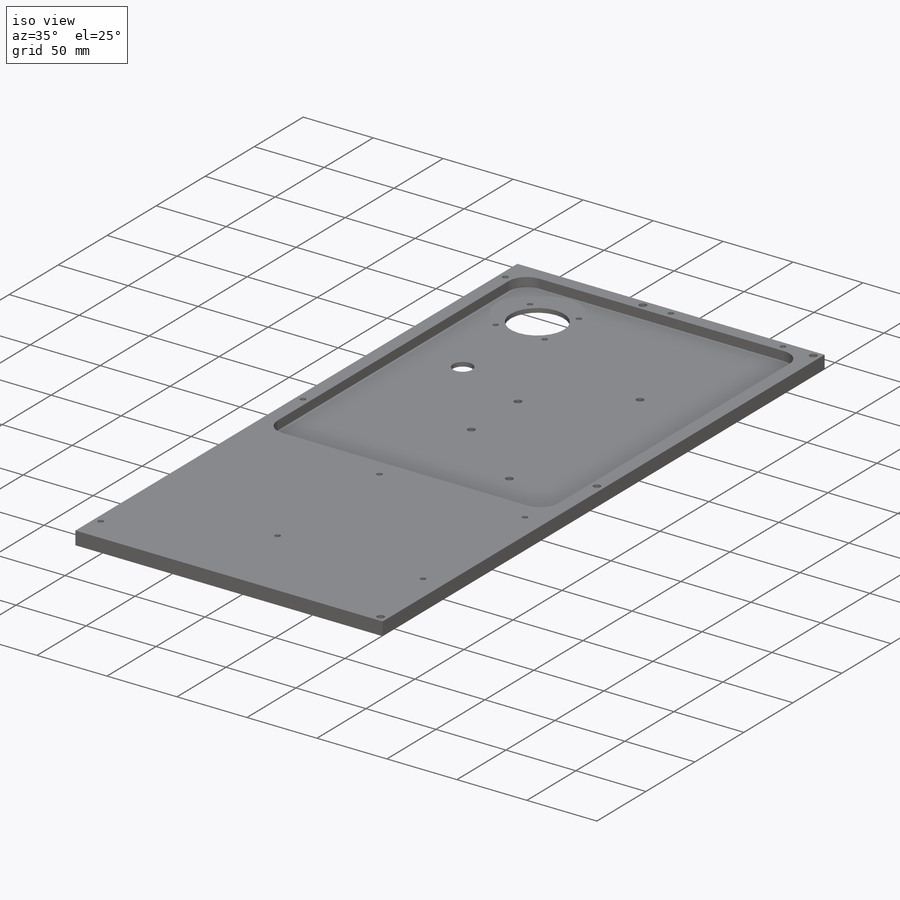
[diagram: iso view]
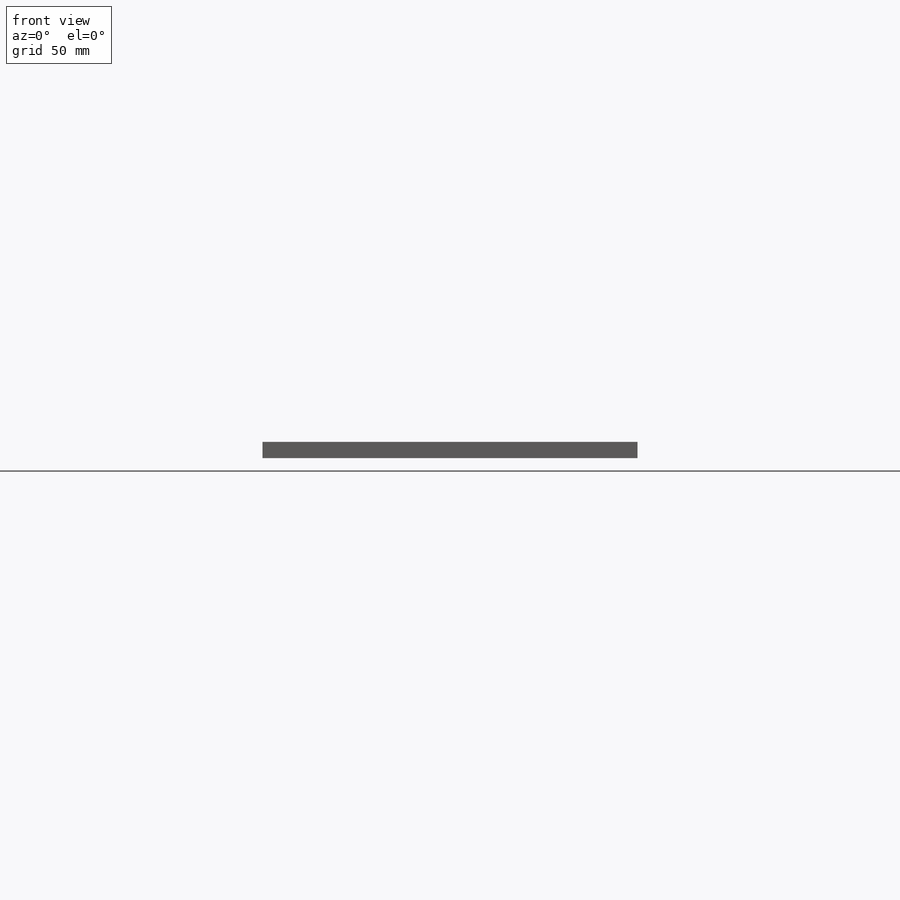
[diagram: front view]
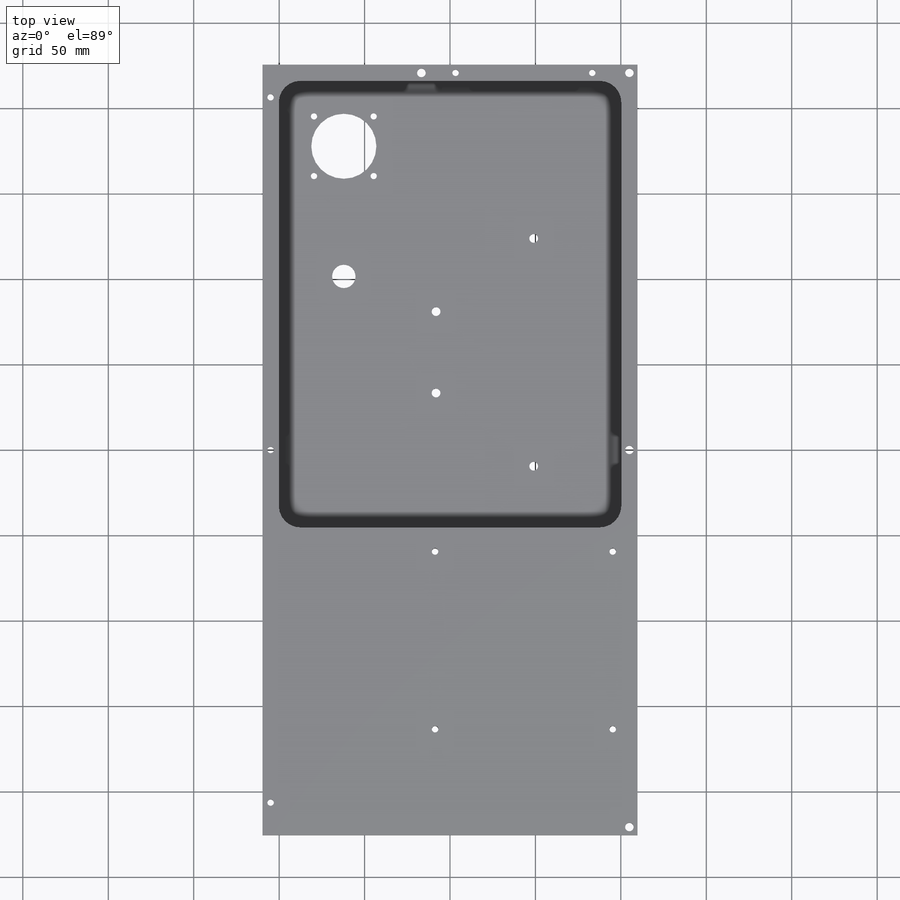
[diagram: top view]
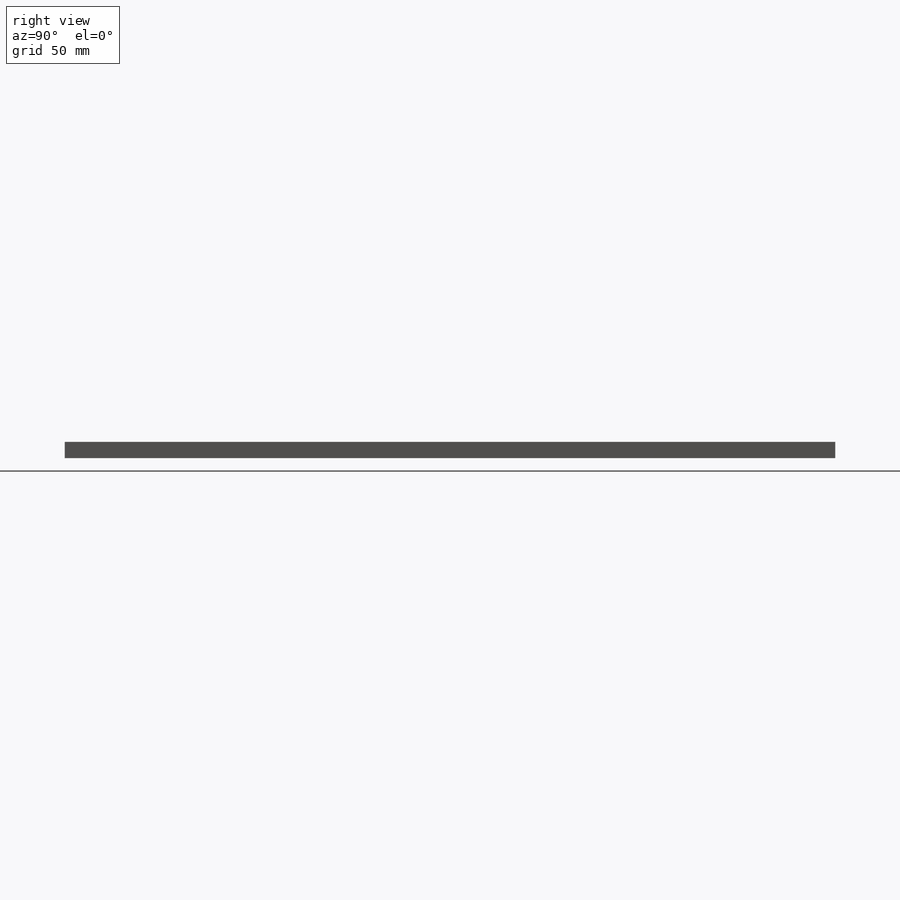
[diagram: right view]
SOLIDWORKS PART (.sldprt)
format: sldprt  version: not decoded by parser v0  size: 532,480 bytes
history: native  units: mm
features: sketch x18, hole x7, thread x4, cut_extrude x3, material x1, extrude x1, fillet x1 (+11 scaffold rows collapsed)
feature tree (46):
  scaffold x11  (default folders/planes/origin — collapsed)
  material  "6061-T6 (SS)"
  sketch  "Sketch1"  dims[D1=451.0mm D2=219.525mm]
  extrude  "Boss-Extrude1"  Depth=9.525mm
  sketch  "Sketch2"  dims[c1.D2=69.0mm c1.D3=84.0mm c1.D4=55.0mm c1.D5=108.0mm c2.D3=84.0mm c2.D6=69.0mm c2.D7=79.0mm c2.D8=180.0mm c2.D9=84.0mm c2.D10=114.0mm c2.D11=55.0mm c2.D2=12.5mm c2.D1=9.525mm]
  cut_extrude  "Cut-Extrude1"  Depth=3mm
  fillet  "Fillet1"  Radius=12.7mm
  hole  "#10-24 Tapped Hole3"  Diameter=3.7973mm Depth=9.525mm
  sketch  "Sketch6"  dims[D1=104.0mm]
  sketch  "Sketch5"  dims[hole-wizard template sketch: 59 standard entries collapsed; hole parameters kept: c18.Thread Major Dia.=3.7973mm c18.Thru Tap Drill Depth=9.525mm]
  hole  "#10-24 Tapped Hole1"  Diameter=3.7973mm Depth=9.525mm
  sketch  "Sketch8"  dims[D1=80.0mm]
  sketch  "Sketch7"  dims[hole-wizard template sketch: 59 standard entries collapsed; hole parameters kept: c18.Thread Major Dia.=3.7973mm c18.Thru Tap Drill Depth=9.525mm]
  sketch  "Sketch9"  dims[D1=76.2mm D2=38.1mm]
  cut_extrude  "Cut-Extrude2"  [1 undecoded]
  hole  "#6 Clearance Hole1"  Diameter=3.6576mm Depth=3mm
  sketch  "Sketch11"  dims[D1=34.925mm]
  sketch  "Sketch10"  dims[hole-wizard template sketch: 47 standard entries collapsed; hole parameters kept: c15.Hole Depth=3.0mm c15.D3=~14.816244mm c15.Drill Angle=118.0deg]
  sketch  "Sketch12"  dims[D1=13.716mm D2=76.2mm]
  cut_extrude  "Cut-Extrude3"  [1 undecoded]
  hole  "#10 Clearance Hole1"  Diameter=4.9784mm Depth=9.525mm
  sketch  "Sketch14"  dims[D1=19.05mm]
  sketch  "Sketch13"  dims[hole-wizard template sketch: 60 standard entries collapsed; hole parameters kept: c18.Thru Hole Depth=9.525mm]
  hole  "#10-24 Tapped Hole4"  Diameter=3.7973mm Depth=18.03mm
  sketch  "Sketch16"  dims[D1=19.05mm]
  sketch  "Sketch15"  dims[hole-wizard template sketch: 47 standard entries collapsed; hole parameters kept: c15.Tap Drill Depth=18.03mm c15.D3=~14.816244mm c15.Drill Angle=118.0deg]
  thread  "Hole Thread3"  Diameter=9.525mm  [1 undecoded]
  thread  "Hole Thread4"  Diameter=9.525mm  [1 undecoded]
  thread  "Hole Thread5"  Diameter=9.525mm  [1 undecoded]
  hole  "#10 Clearance Hole2"  Diameter=5.1054mm Depth=135.89mm
  sketch  "Sketch18"  dims[c1.D1=101.6mm c1.D2=101.6mm c1.D3=47.625mm c1.D4=57.15mm c1.D5=133.35mm c2.D1=101.6mm]
  sketch  "Sketch17"  dims[hole-wizard template sketch: 47 standard entries collapsed; hole parameters kept: c15.Hole Depth=135.89mm c15.D3=~14.816244mm c15.Drill Angle=118.0deg]
  hole  "1/4-20 Tapped Hole1"  Diameter=5.1054mm Depth=17.15mm
  sketch  "Sketch20"  dims[D1=20.0mm]
  sketch  "Sketch19"  dims[hole-wizard template sketch: 47 standard entries collapsed; hole parameters kept: c15.Tap Drill Depth=17.15mm c15.D3=~14.816244mm c15.Drill Angle=118.0deg]
  thread  "Hole Thread6"  Diameter=7.62mm  [1 undecoded]
decode coverage: 32 of 34 modeling features carry decoded parameters
note: ~ marks probable driven/reference dimensions
note: 6 parameter values undecoded
summary: Diameter pulled from absorbed wizard sketch
note: suppression state not decoded; provenance and decode notes live in map.json
